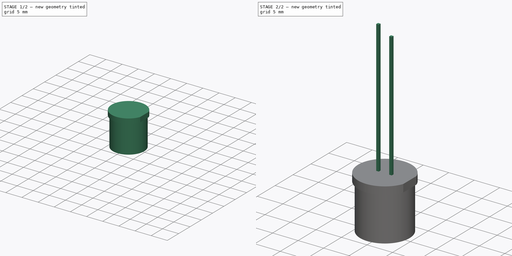
[diagram: build sequence overview — one tinted view per stage of 2, left to right]
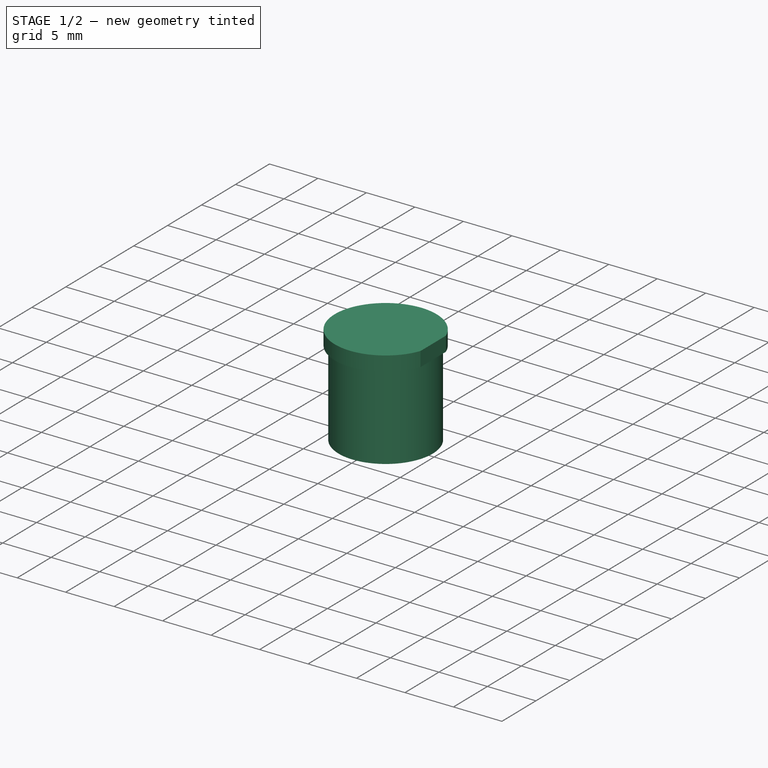
[diagram: stage 1 of 2 — iso view after this stage's code; geometry added in this stage tinted green]
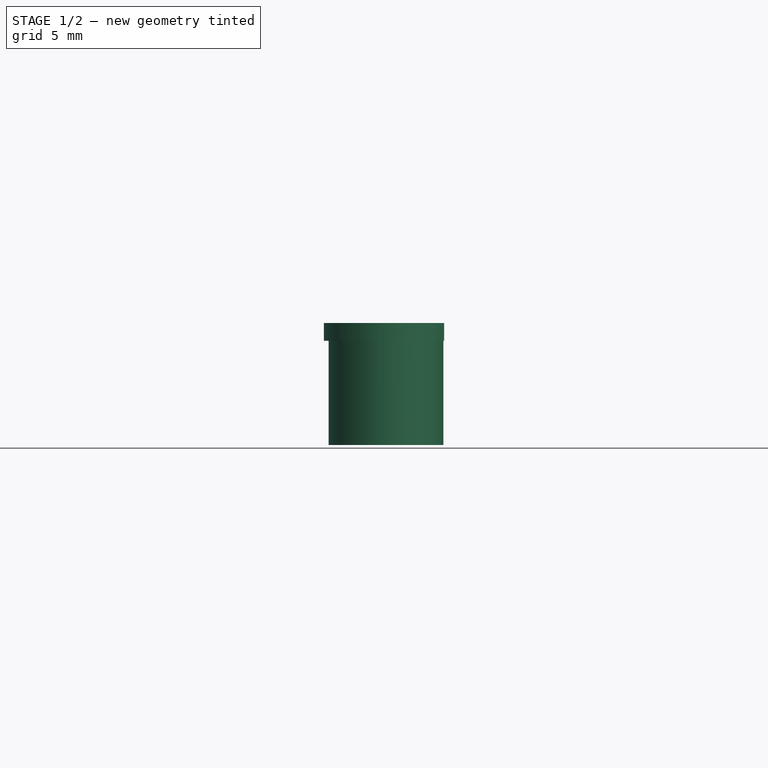
[diagram: stage 1 of 2 — front view after this stage's code; geometry added in this stage tinted green]
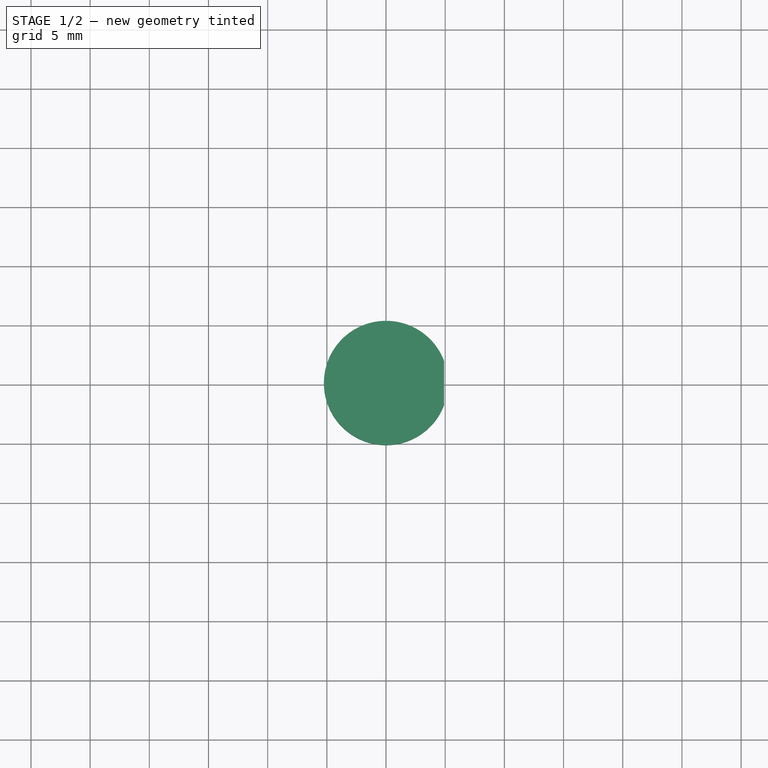
[diagram: stage 1 of 2 — top view after this stage's code; geometry added in this stage tinted green]
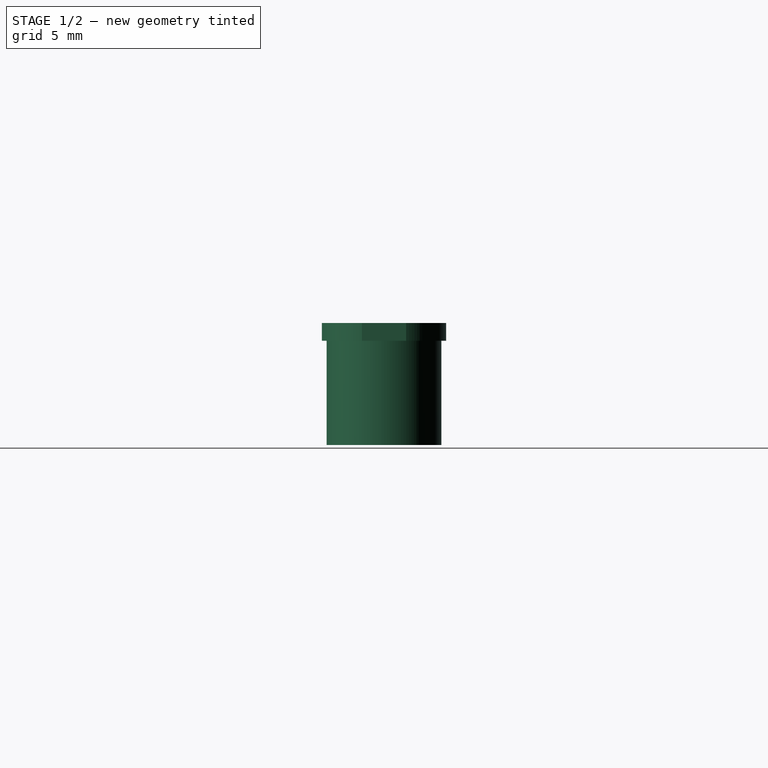
[diagram: stage 1 of 2 — right view after this stage's code; geometry added in this stage tinted green]
FCSTD DOCUMENT  (FreeCAD 0.19R24276 (Git))
Label: led-10mm
License: All rights reserved
LicenseURL: http://en.wikipedia.org/wiki/All_rights_reserved
objects: Sketcher::SketchObject×4, PartDesign::Pad×4, PartDesign::Body×1
note: 13 computed .brp shape members not serialized (recipe doc carries the construction recipe); baked Part::Feature solids carry a one-line shape summary decoded from their .brp

FEATURE [Sketcher::SketchObject] Sketch  label="bottom_circle"
  FullyConstrained = false
  MapMode = 5
  Support = -> [XY_Plane]
  sketch-geometry (2):
    g0: ArcOfCircle CenterX=0 CenterY=0 CenterZ=0 NormalX=0 NormalY=0 NormalZ=1 AngleXU=0 Radius=5.25 StartAngle=0.363661 EndAngle=5.91952
    g1: LineSegment StartX=4.90666 StartY=-1.86741 StartZ=0 EndX=4.90666 EndY=1.86741 EndZ=0
  constraints (3):
    c: Vertical(g1)
    c: Coincident(g1,g0)
    c: Coincident(g1,g0)
FEATURE [PartDesign::Pad] Pad  label="bottom_circle_pad"
  Direction = (1,1,1)
  Length = 1.5
  Length2 = 100
  Profile = -> Sketch
  Type = 0
FEATURE [Sketcher::SketchObject] Sketch001  label="top_circle"
  FullyConstrained = true
  MapMode = 5
  Placement = pos=(0,0,0) rot=(1,0,0;3.14159rad)
  Support = -> [Pad]
  sketch-geometry (1):
    g0: Circle CenterX=0 CenterY=0 CenterZ=0 NormalX=0 NormalY=0 NormalZ=1 AngleXU=0 Radius=4.85
  constraints (2):
    c: Coincident(g0,g-1)
    c: Diameter(g0) = 9.7
FEATURE [PartDesign::Pad] Pad001  label="top_circle_pad"
  BaseFeature = -> Pad
  Direction = (1,1,1)
  Length = 8.8
  Length2 = 100
  Profile = -> Sketch001
  Type = 0
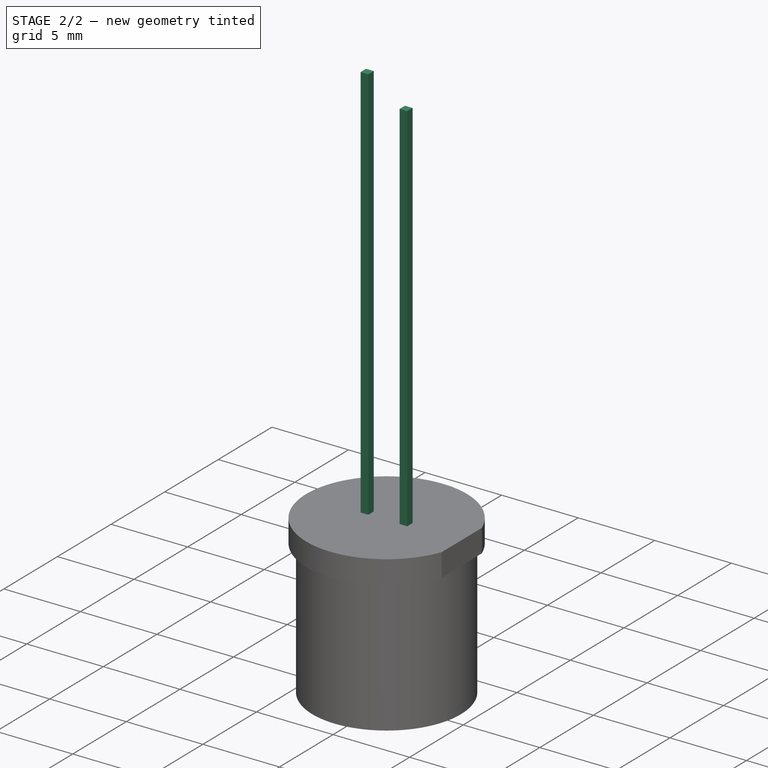
[diagram: stage 2 of 2 — iso view after this stage's code; geometry added in this stage tinted green]
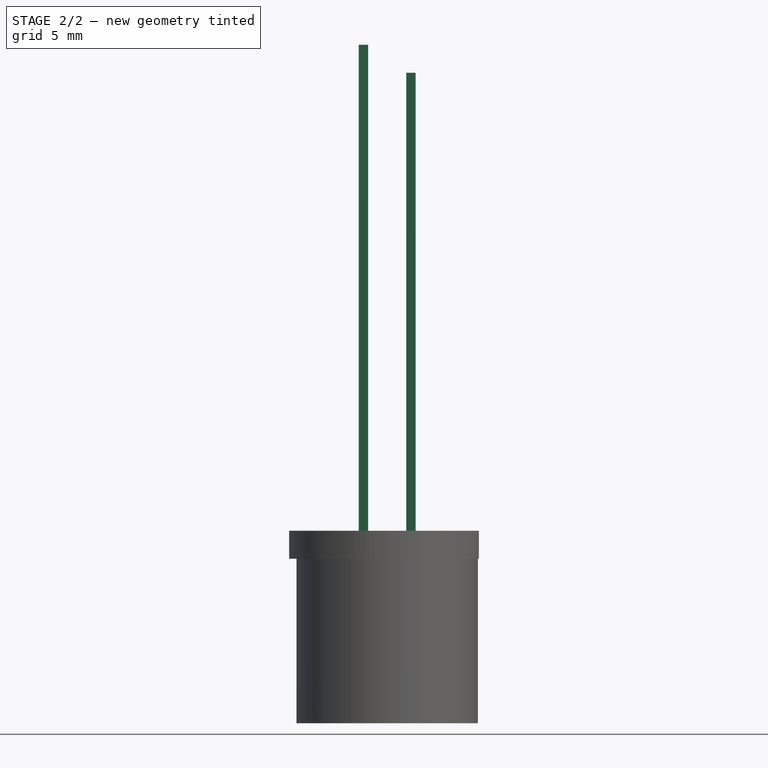
[diagram: stage 2 of 2 — front view after this stage's code; geometry added in this stage tinted green]
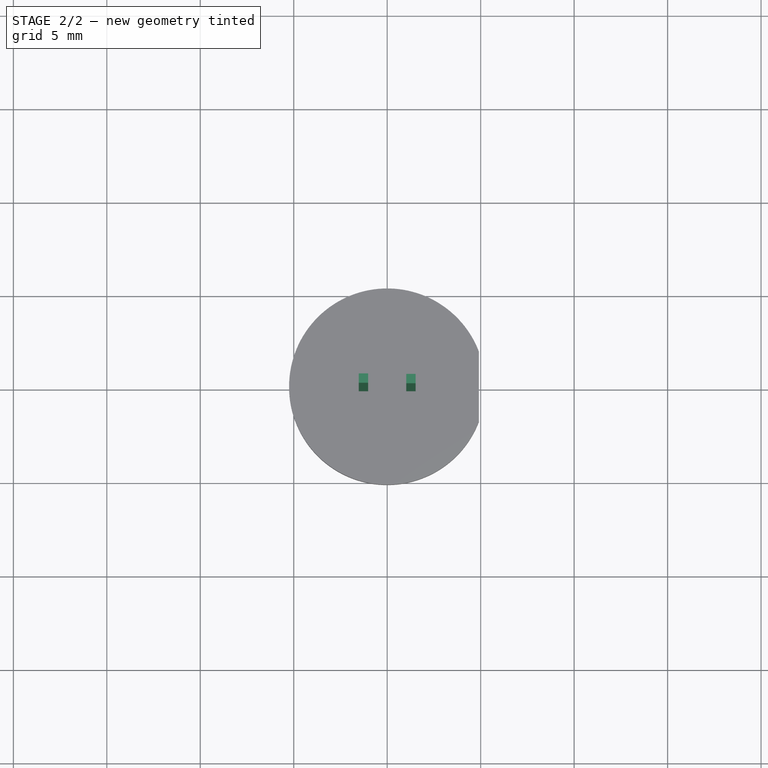
[diagram: stage 2 of 2 — top view after this stage's code; geometry added in this stage tinted green]
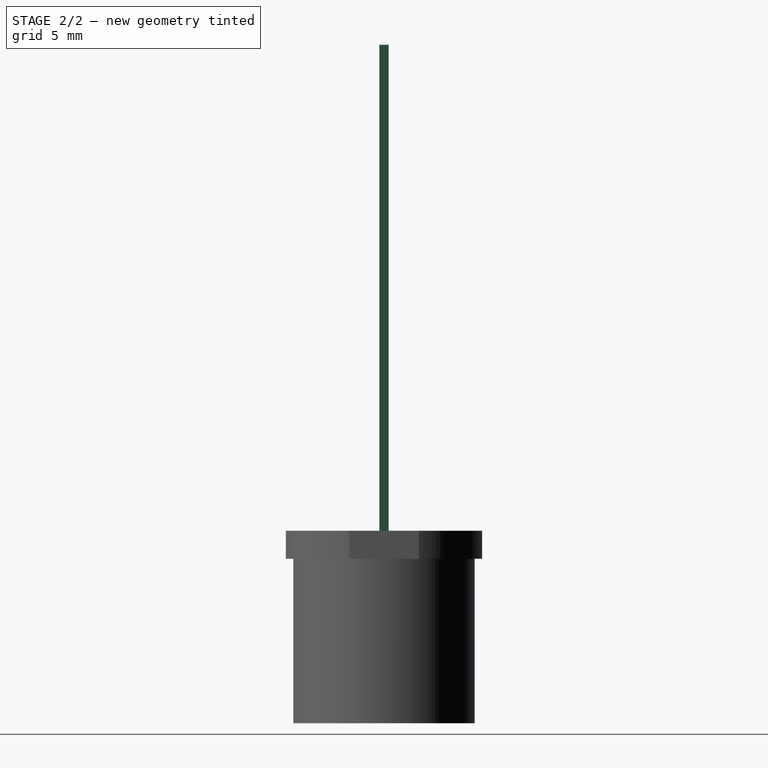
[diagram: stage 2 of 2 — right view after this stage's code; geometry added in this stage tinted green]
FEATURE [Sketcher::SketchObject] Sketch002  label="tht_outlet_anode"
  FullyConstrained = true
  MapMode = 5
  Placement = pos=(0,0,1.5) rot=(0,0,1;0rad)
  Support = -> [Pad001]
  sketch-geometry (4):
    g0: LineSegment StartX=-1.52 StartY=0.25 StartZ=0 EndX=-1.02 EndY=0.25 EndZ=0
    g1: LineSegment StartX=-1.02 StartY=0.25 StartZ=0 EndX=-1.02 EndY=-0.25 EndZ=0
    g2: LineSegment StartX=-1.02 StartY=-0.25 StartZ=0 EndX=-1.52 EndY=-0.25 EndZ=0
    g3: LineSegment StartX=-1.52 StartY=-0.25 StartZ=0 EndX=-1.52 EndY=0.25 EndZ=0
  constraints (12):
    c: Coincident(g0,g1)
    c: Coincident(g1,g2)
    c: Coincident(g2,g3)
    c: Coincident(g3,g0)
    c: Horizontal(g0)
    c: Horizontal(g2)
    c: Vertical(g1)
    c: Vertical(g3)
    c: DistanceX(g0,g0) = 0.5
    c: DistanceY(g3,g3) = 0.5
    c: DistanceX(g1,g-1) = 1.02
    c: DistanceY(g1,g-1) = 0.25
FEATURE [Sketcher::SketchObject] Sketch003  label="tht_outlet_catode"
  FullyConstrained = true
  MapMode = 5
  Placement = pos=(0,0,1.5) rot=(0,0,1;0rad)
  Support = -> [Pad001]
  sketch-geometry (4):
    g0: LineSegment StartX=1.02 StartY=0.25 StartZ=0 EndX=1.52 EndY=0.25 EndZ=0
    g1: LineSegment StartX=1.52 StartY=0.25 StartZ=0 EndX=1.52 EndY=-0.25 EndZ=0
    g2: LineSegment StartX=1.52 StartY=-0.25 StartZ=0 EndX=1.02 EndY=-0.25 EndZ=0
    g3: LineSegment StartX=1.02 StartY=-0.25 StartZ=0 EndX=1.02 EndY=0.25 EndZ=0
  constraints (12):
    c: Coincident(g0,g1)
    c: Coincident(g1,g2)
    c: Coincident(g2,g3)
    c: Coincident(g3,g0)
    c: Horizontal(g0)
    c: Horizontal(g2)
    c: Vertical(g1)
    c: Vertical(g3)
    c: DistanceX(g0,g0) = 0.5
    c: DistanceY(g1,g1) = 0.5
    c: DistanceX(g-1,g2) = 1.02
    c: DistanceY(g2,g-1) = 0.25
FEATURE [PartDesign::Pad] Pad002  label="tht_outlet_anode_pad"
  BaseFeature = -> Pad001
  Direction = (1,1,1)
  Length = 26
  Length2 = 100
  Profile = -> Sketch002
  Type = 0
FEATURE [PartDesign::Pad] Pad003  label="tht_outlet_catode_pad"
  BaseFeature = -> Pad002
  Direction = (1,1,1)
  Length = 24.5
  Length2 = 100
  Profile = -> Sketch003
  Type = 0
FEATURE [PartDesign::Body] Body
  Group = -> [Sketch,Pad,Sketch001,Pad001,Sketch002,Sketch003,Pad002,Pad003]
  Origin = -> Origin
  Tip = -> Pad003
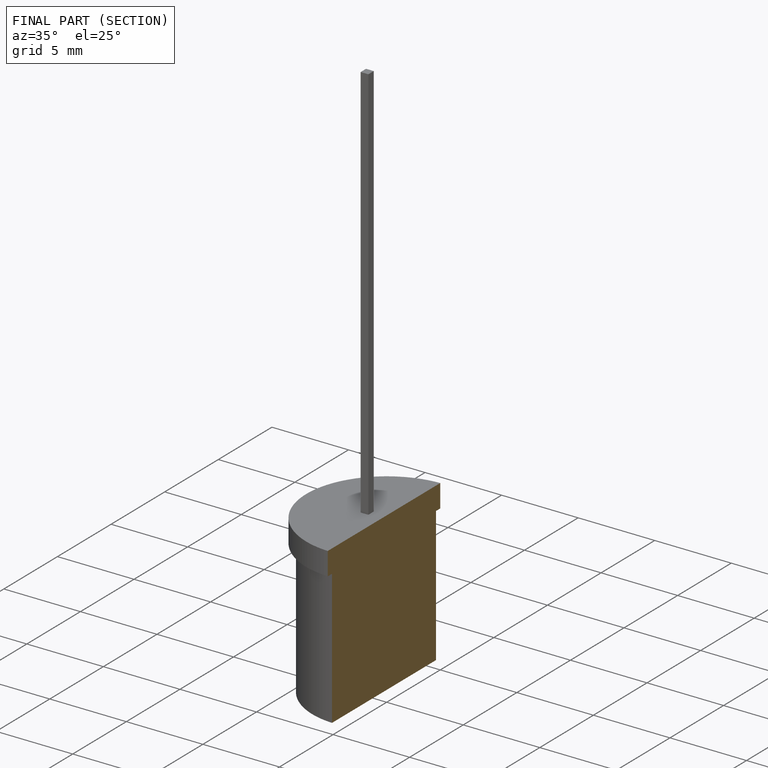
[diagram: finished part — half-section view (interior)]
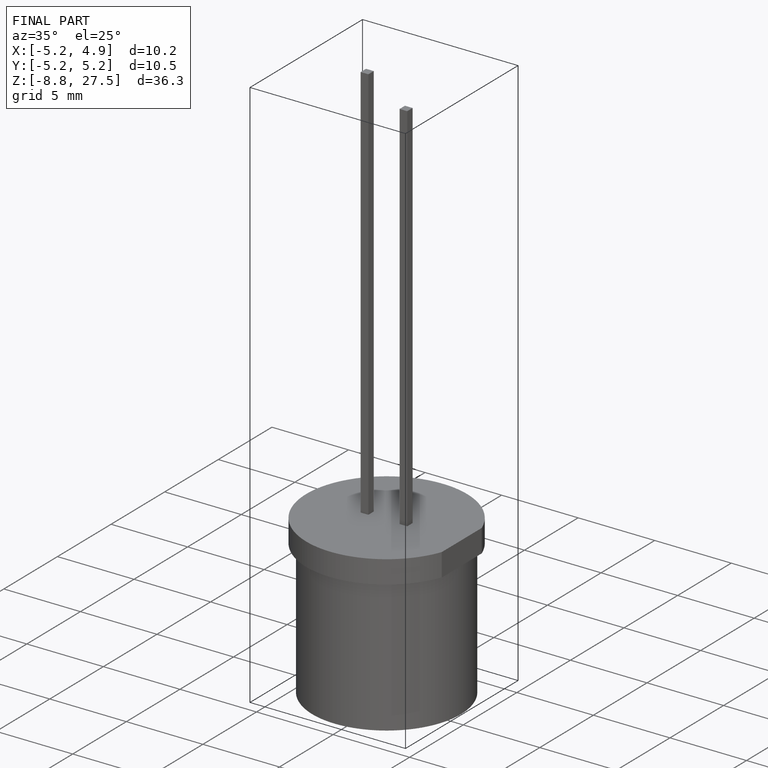
[diagram: finished part — iso view with bounding-box wireframe]
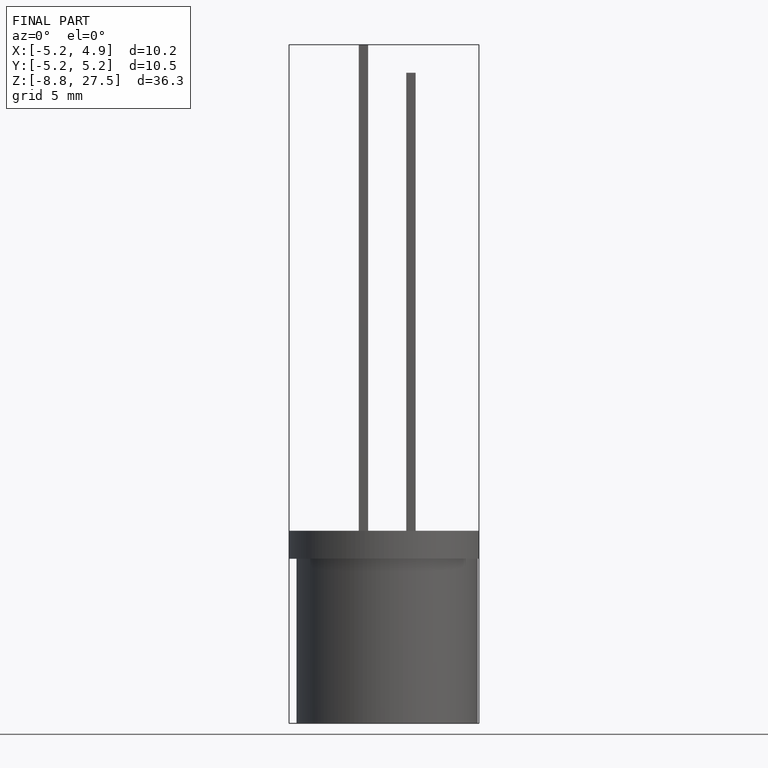
[diagram: finished part — front view with bounding-box wireframe]
